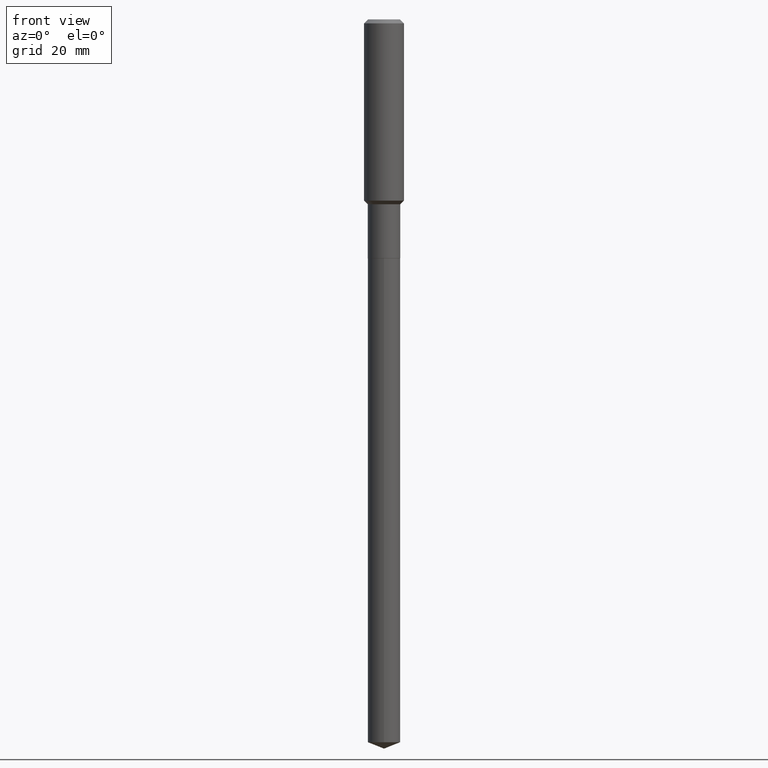
[diagram: clean part render]
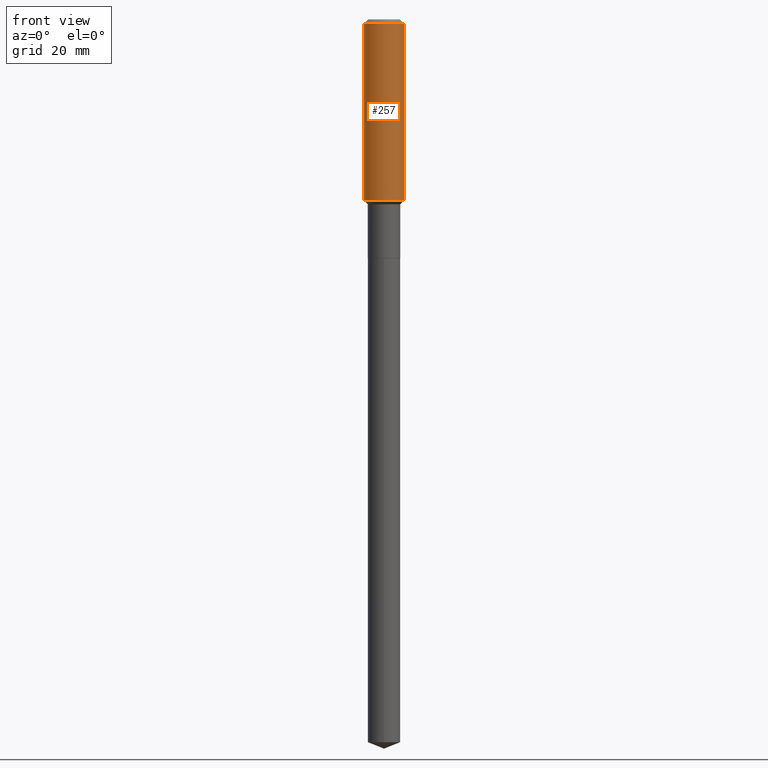
[diagram: same view with one face highlighted and labeled with its STEP entity id]
A machine part, front view. The second image highlights one B-rep face of the part: STEP entity #257.
In plain terms, the highlighted cylindrical surface (edge-blend (fillet) strip) has radius 4.0005 mm, axis along (-0, 0, 1).
Its self-contained STEP definition (entity closure, byte-faithful):
#7 = AXIS2_PLACEMENT_3D ( 'NONE', #187, #289, #214 ) ;
#16 = AXIS2_PLACEMENT_3D ( 'NONE', #404, #68, #477 ) ;
#35 = ORIENTED_EDGE ( 'NONE', *, *, #323, .F. ) ;
#46 = VECTOR ( 'NONE', #117, 39.37007874015748143 ) ;
#68 = DIRECTION ( 'NONE',  ( -2.445468806185136597E-29, 3.491481338843145583E-15, 1.000000000000000000 ) ) ;
#69 = CIRCLE ( 'NONE', #7, 0.1575000000000000011 ) ;
#74 = AXIS2_PLACEMENT_3D ( 'NONE', #395, #478, #275 ) ;
#109 = EDGE_LOOP ( 'NONE', ( #146, #325, #338, #35 ) ) ;
#117 = DIRECTION ( 'NONE',  ( -2.445468806185136877E-29, 3.491481338843145188E-15, 1.000000000000000000 ) ) ;
#146 = ORIENTED_EDGE ( 'NONE', *, *, #365, .F. ) ;
#163 = CARTESIAN_POINT ( 'NONE',  ( 0.1575000000000000011, -1.209798283909146741E-15, -0.03150000000000019451 ) ) ;
#172 = CARTESIAN_POINT ( 'NONE',  ( -0.1575000000000000011, -1.429501994466394853E-15, -0.03150000000000019451 ) ) ;
#187 = CARTESIAN_POINT ( 'NONE',  ( 7.703226739483228723E-31, -1.099816621735597661E-16, -0.03150000000000019451 ) ) ;
#191 = CARTESIAN_POINT ( 'NONE',  ( -0.1575000000000001676, -3.868127135581388640E-15, -1.428399999999999448 ) ) ;
#194 = VERTEX_POINT ( 'NONE', #172 ) ;
#212 = CIRCLE ( 'NONE', #16, 0.1575000000000001676 ) ;
#214 = DIRECTION ( 'NONE',  ( 1.000000000000000000, -6.982962677686265922E-15, 0.000000000000000000 ) ) ;
#219 = EDGE_CURVE ( 'NONE', #453, #414, #212, .T. ) ;
#238 = CYLINDRICAL_SURFACE ( 'NONE', #74, 0.1575000000000000844 ) ;
#249 = LINE ( 'NONE', #366, #442 ) ;
#257 = ADVANCED_FACE ( 'NONE', ( #447 ), #238, .T. ) ;
#263 = CARTESIAN_POINT ( 'NONE',  ( 0.1575000000000000844, -1.099816621735587677E-15, 7.679978421878603638E-30 ) ) ;
#275 = DIRECTION ( 'NONE',  ( 1.000000000000000000, -6.982962677686267499E-15, 4.876176775795936353E-29 ) ) ;
#286 = DIRECTION ( 'NONE',  ( -2.445468806185136877E-29, 3.491481338843145188E-15, 1.000000000000000000 ) ) ;
#289 = DIRECTION ( 'NONE',  ( -2.445468806185136597E-29, 3.491481338843145583E-15, 1.000000000000000000 ) ) ;
#297 = LINE ( 'NONE', #263, #46 ) ;
#323 = EDGE_CURVE ( 'NONE', #194, #384, #69, .T. ) ;
#325 = ORIENTED_EDGE ( 'NONE', *, *, #219, .T. ) ;
#338 = ORIENTED_EDGE ( 'NONE', *, *, #385, .T. ) ;
#365 = EDGE_CURVE ( 'NONE', #453, #194, #249, .T. ) ;
#366 = CARTESIAN_POINT ( 'NONE',  ( -0.1575000000000000844, 1.119104808822158392E-15, -7.747322767151481189E-30 ) ) ;
#375 = CARTESIAN_POINT ( 'NONE',  ( 0.1575000000000001676, -6.087048566139135302E-15, -1.428399999999999448 ) ) ;
#384 = VERTEX_POINT ( 'NONE', #163 ) ;
#385 = EDGE_CURVE ( 'NONE', #414, #384, #297, .T. ) ;
#395 = CARTESIAN_POINT ( 'NONE',  ( 0.000000000000000000, 0.000000000000000000, 0.000000000000000000 ) ) ;
#404 = CARTESIAN_POINT ( 'NONE',  ( 3.493107642754847449E-29, -4.987231944403547033E-15, -1.428399999999999448 ) ) ;
#414 = VERTEX_POINT ( 'NONE', #375 ) ;
#442 = VECTOR ( 'NONE', #286, 39.37007874015748143 ) ;
#447 = FACE_OUTER_BOUND ( 'NONE', #109, .T. ) ;
#453 = VERTEX_POINT ( 'NONE', #191 ) ;
#477 = DIRECTION ( 'NONE',  ( 1.000000000000000000, -6.982962677686267499E-15, 0.000000000000000000 ) ) ;
#478 = DIRECTION ( 'NONE',  ( -2.445468806185136597E-29, 3.491481338843145583E-15, 1.000000000000000000 ) ) ;